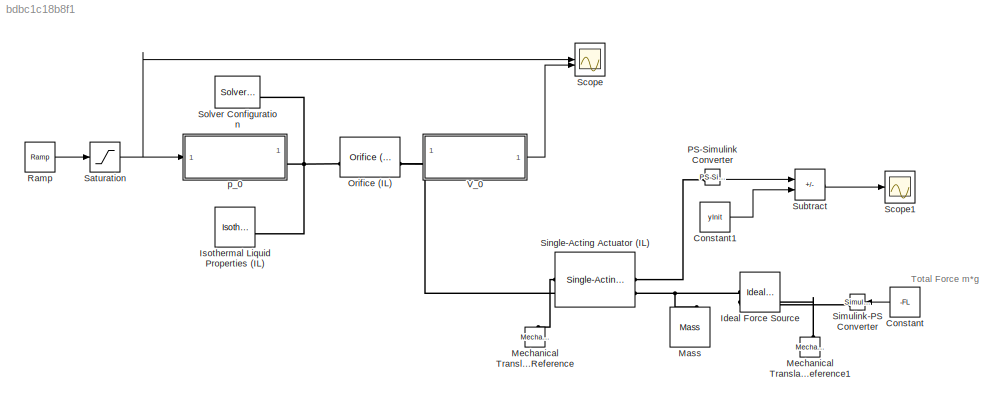
MODEL slx_bdbc1c18b8f1
KIND model
CONFIG AbsTol = auto
CONFIG EnableMultiTasking = off
CONFIG FixedStep = auto
CONFIG MaxStep = auto
CONFIG MinStep = auto
CONFIG RelTol = 1e-3
CONFIG SampleTimeConstraint = Unconstrained
CONFIG SolverName = VariableStepAuto
CONFIG StartTime = 0.0
CONFIG StopTime = 1
WORKSPACE source: MATLAB code (in-file)
WORKSPACE code: clear;
WORKSPACE m = 3200
WORKSPACE g = 9.81
WORKSPACE FL = m*g  (= 31392)
WORKSPACE dCyl = 63/1e3  (= 0.063)
WORKSPACE ACyl = pi/4*dCyl^2  (= 0.00311724531052)
WORKSPACE pInit = FL/ACyl  (= 10070429.7779)
WORKSPACE V_y0 = 2/1e3  (= 0.002)
WORKSPACE V_0 = 1.5/1e3  (= 0.0015)
WORKSPACE yInit = (V_y0-V_0)/ACyl  (= 0.160398027807)
WORKSPACE hCyl = 5
BLOCK [Constant] Constant
  NameLocation = top
  Value = -FL
BLOCK [Constant] Constant1
  Value = yInit
BLOCK [Reference] Ideal Force Source  REF=fl_lib/Mechanical/Mechanical Sources/Ideal Force Source
  NameLocation = top
  SourceBlock = fl_lib/Mechanical/Mechanical Sources/Ideal Force Source
  SourceType = Ideal Force Source
BLOCK [Reference] Isothermal Liquid Properties (IL)  REF=fl_lib/Isothermal Liquid/Utilities/Isothermal Liquid
Properties (IL)
  SourceBlock = fl_lib/Isothermal Liquid/Utilities/Isothermal Liquid\nProperties (IL)
  SourceType = Isothermal Liquid\nProperties (IL)
BLOCK [Reference] Mass  REF=fl_lib/Mechanical/Translational
Elements/Mass
  NameLocation = right
  SourceBlock = fl_lib/Mechanical/Translational\nElements/Mass
  SourceType = Mass
BLOCK [Reference] Mechanical Translational Reference  REF=fl_lib/Mechanical/Translational
Elements/Mechanical
Translational
Reference
  NameLocation = right
  SourceBlock = fl_lib/Mechanical/Translational\nElements/Mechanical\nTranslational\nReference
  SourceType = Mechanical\nTranslational\nReference
BLOCK [Reference] Mechanical Translational Reference1  REF=fl_lib/Mechanical/Translational
Elements/Mechanical
Translational
Reference
  NameLocation = right
  SourceBlock = fl_lib/Mechanical/Translational\nElements/Mechanical\nTranslational\nReference
  SourceType = Mechanical\nTranslational\nReference
BLOCK [Reference] Orifice (IL)  REF=SimscapeFluids_lib/Isothermal Liquid/Valves & Orifices/Orifices/Orifice (IL)
  SourceBlock = SimscapeFluids_lib/Isothermal Liquid/Valves & Orifices/Orifices/Orifice (IL)
  SourceType = Orifice (IL)
BLOCK [Reference] PS-Simulink Converter  REF=nesl_utility/PS-Simulink
Converter
  SourceBlock = nesl_utility/PS-Simulink\nConverter
  SourceType = PS-Simulink\nConverter
BLOCK [Reference] Ramp  REF=simulink/Sources/Ramp
  SourceBlock = simulink/Sources/Ramp
  SourceType = Ramp
BLOCK [Saturate] Saturation
  LowerLimit = 0
  UpperLimit = 150
BLOCK [Scope] Scope
  ActiveDisplayYMaximum = 168.75
  ActiveDisplayYMinimum = -18.749999999999996
  Floating = off
  GraphicalSettings = {"AxesScalingProperties":{"AlignXAxis":"Center","AlignYAxis":"Center","AutoScaleXAxisLimits":false,"AxesScaling":"Manual","AxesScalingNumUpdates":10,"ExpandOnly":true,"ScaleAxesLimitsAtStop":false,"XAxisDataRange":100,"YAxisDataRange":80},"DisplayProperties":{"ColorOrder":["auto","auto","auto","auto","auto","auto","auto","auto","auto","auto","auto","auto","auto","auto","auto","auto","auto","auto",...<+2017ch>
  MultipleDisplayCache = [{"MaxYLimMag":168.75,"MaxYLimReal":168.75,"MinYLimMag":0,"MinYLimReal":-18.749999999999996,"PlotAsMagnitudePhase":false,"ShowGrid":true,"ShowLegend":false,"Title":"%<SignalLabel>","YLabel":""}]
  NumInputPorts = 2
  ScopeFrameLocation = window
  WasSavedAsWebScope = on
  WindowPosition = [784.000000,270.000000,560.000000,420.000000,]
BLOCK [Scope] Scope1
  ActiveDisplayYMaximum = 0.15776835855223592
  ActiveDisplayYMinimum = -0.086783873029450967
  DataLoggingVariableName = ScopeData1
  Floating = off
  GraphicalSettings = {"Style":{"BackgroundColor":[0.12941176470588237,0.12941176470588237,0.12941176470588237],"AxesColor":[0.07058823529411765,0.07058823529411765,0.07058823529411765],"LabelsColor":[0.8509803921568627,0.8509803921568627,0.8509803921568627],"PreserveColors":false,"Visible":[true],"LineStyle":["-"],"LineWidth":[1.5],"BarWidth":[0.9],"LineColor":["auto"],"LineFaceAlpha":[1],"LineEdgeAlpha":[1],"Marker":...<+1898ch>
  MultipleDisplayCache = [{"MaxYLimMag":0.15776835855223592,"MaxYLimReal":0.15776835855223592,"MinYLimMag":0,"MinYLimReal":-0.086783873029450967,"PlotAsMagnitudePhase":false,"ShowGrid":true,"ShowLegend":false,"Title":"%<SignalLabel>","YLabel":""}]
  NumInputPorts = 1
  ScopeFrameLocation = window
  WasSavedAsWebScope = on
  WindowPosition = [213.000000,276.000000,560.000000,420.000000,]
BLOCK [Reference] Simulink-PS Converter  REF=nesl_utility/Simulink-PS
Converter
  NameLocation = top
  SourceBlock = nesl_utility/Simulink-PS\nConverter
  SourceType = Simulink-PS\nConverter
BLOCK [Reference] Single-Acting Actuator (IL)  REF=SimscapeFluids_lib/Isothermal Liquid/Actuators/Single-Acting
Actuator (IL)
  SourceBlock = SimscapeFluids_lib/Isothermal Liquid/Actuators/Single-Acting\nActuator (IL)
  SourceType = Single-Acting\nActuator (IL)
BLOCK [Reference] Solver Configuration  REF=nesl_utility/Solver
Configuration
  SourceBlock = nesl_utility/Solver\nConfiguration
  SourceType = Solver\nConfiguration
BLOCK [Sum] Subtract
  IconShape = rectangular
  Inputs = +-
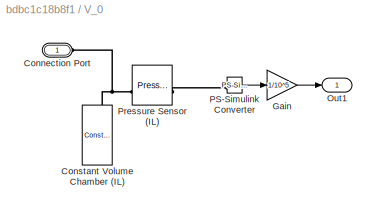
BLOCK [SubSystem] V_0
BLOCK [PMIOPort] V_0/Connection Port
  Side = Left
BLOCK [Reference] V_0/Constant Volume Chamber (IL)  REF=fl_lib/Isothermal Liquid/Elements/Constant Volume
Chamber (IL)
  NameLocation = right
  SourceBlock = fl_lib/Isothermal Liquid/Elements/Constant Volume\nChamber (IL)
  SourceType = Constant Volume\nChamber (IL)
BLOCK [Gain] V_0/Gain
  Gain = 1/10^5
BLOCK [Outport] V_0/Out1
BLOCK [Reference] V_0/PS-Simulink Converter  REF=nesl_utility/PS-Simulink
Converter
  SourceBlock = nesl_utility/PS-Simulink\nConverter
  SourceType = PS-Simulink\nConverter
BLOCK [Reference] V_0/Pressure Sensor (IL)  REF=fl_lib/Isothermal Liquid/Sensors/Pressure Sensor (IL)
  SourceBlock = fl_lib/Isothermal Liquid/Sensors/Pressure Sensor (IL)
  SourceType = Pressure Sensor (IL)
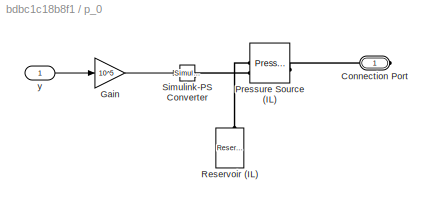
BLOCK [SubSystem] p_0
BLOCK [PMIOPort] p_0/Connection Port
  NameLocation = top
  Side = Right
BLOCK [Gain] p_0/Gain
  Gain = 10^5
BLOCK [Reference] p_0/Pressure Source (IL)  REF=fl_lib/Isothermal Liquid/Sources/Pressure Source (IL)
  SourceBlock = fl_lib/Isothermal Liquid/Sources/Pressure Source (IL)
  SourceType = Pressure Source (IL)
BLOCK [Reference] p_0/Reservoir (IL)  REF=fl_lib/Isothermal Liquid/Elements/Reservoir (IL)
  NameLocation = right
  SourceBlock = fl_lib/Isothermal Liquid/Elements/Reservoir (IL)
  SourceType = Reservoir (IL)
BLOCK [Reference] p_0/Simulink-PS Converter  REF=nesl_utility/Simulink-PS
Converter
  SourceBlock = nesl_utility/Simulink-PS\nConverter
  SourceType = Simulink-PS\nConverter
BLOCK [Inport] p_0/y
ANNOTATION (root): Total Force m*g
LINE Constant1:1 -> Subtract:2
LINE Constant:1 -> Simulink-PS Converter:1
LINE PS-Simulink Converter:1 -> Subtract:1
LINE Ramp:1 -> Saturation:1
NET Saturation:1 -> Scope:1, p_0:1
LINE Subtract:1 -> Scope1:1
LINE V_0/Gain:1 -> V_0/Out1:1
LINE V_0/PS-Simulink Converter:1 -> V_0/Gain:1
LINE V_0:1 -> Scope:2
LINE p_0/Gain:1 -> p_0/Simulink-PS Converter:1
LINE p_0/y:1 -> p_0/Gain:1
PNET net1: Ideal Force Source:LConn1 -- Mass:LConn1 -- Single-Acting Actuator (IL):RConn2
PLINE Ideal Force Source:RConn1 -- Simulink-PS Converter:RConn1
PLINE Ideal Force Source:RConn2 -- Mechanical Translational Reference1:LConn1
PNET net2: Isothermal Liquid Properties (IL):RConn1 -- Orifice (IL):LConn1 -- Solver Configuration:RConn1 -- p_0:RConn1
PLINE Mechanical Translational Reference:LConn1 -- Single-Acting Actuator (IL):LConn1
PNET net3: Orifice (IL):RConn1 -- Single-Acting Actuator (IL):LConn2 -- V_0:LConn1
PLINE PS-Simulink Converter:LConn1 -- Single-Acting Actuator (IL):RConn1
PNET net4: V_0/Connection Port:RConn1 -- V_0/Constant Volume Chamber (IL):LConn1 -- V_0/Pressure Sensor (IL):LConn1
PLINE V_0/PS-Simulink Converter:LConn1 -- V_0/Pressure Sensor (IL):RConn1
PLINE p_0/Connection Port:RConn1 -- p_0/Pressure Source (IL):RConn1
PLINE p_0/Pressure Source (IL):LConn1 -- p_0/Reservoir (IL):LConn1
PLINE p_0/Pressure Source (IL):LConn2 -- p_0/Simulink-PS Converter:RConn1
note: NET lines group one-source signal fan-out (src -> all destinations, sorted); 1:1 wires keep LINE; PNET lines group multi-terminal physical nets as a canonical sorted terminal list (undirected conserving connections); 2-terminal nets keep the pairwise PLINE form
